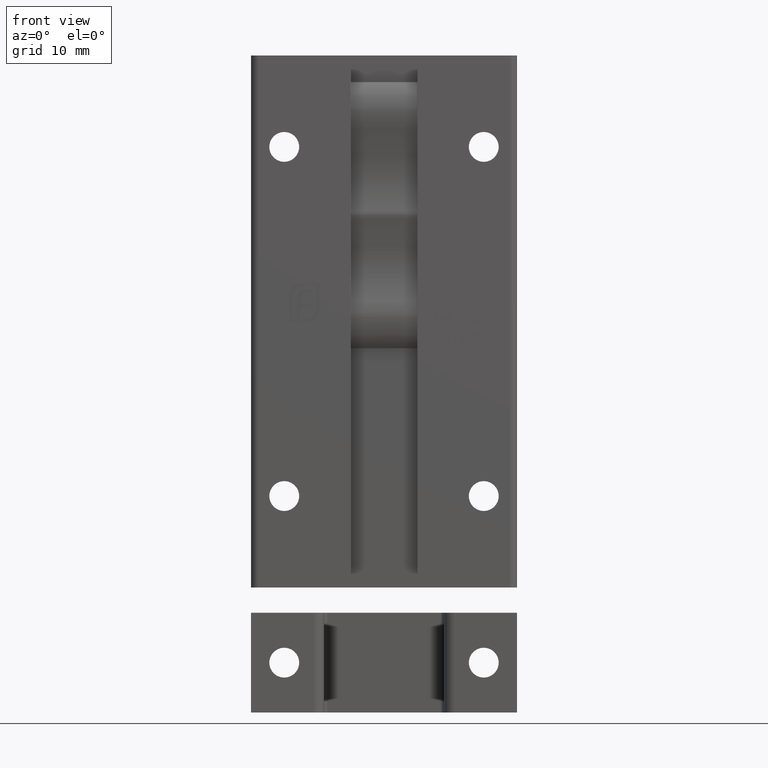
[diagram: clean part render]
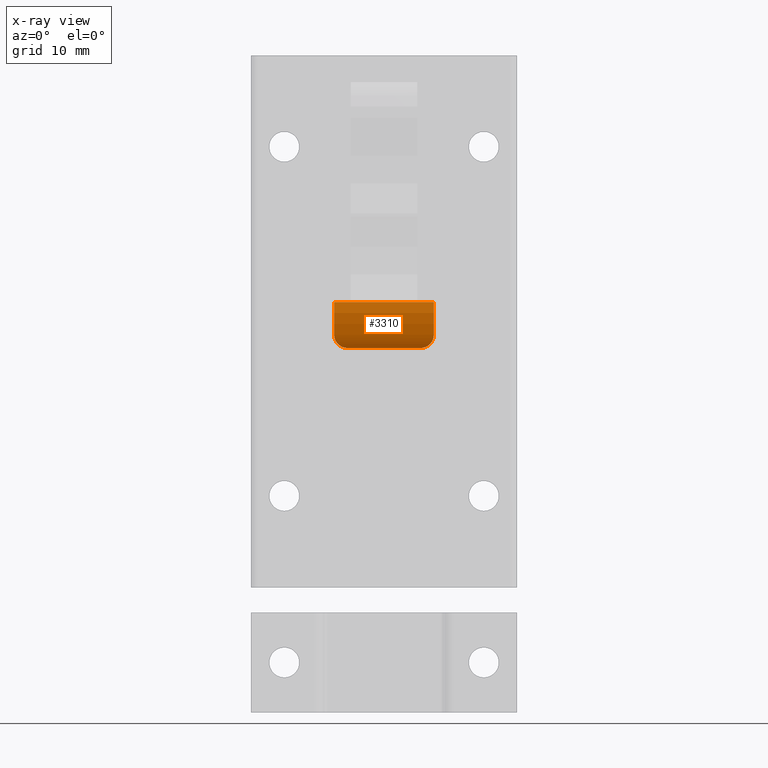
[diagram: x-ray — body ghosted, one internal face saturated and labeled with its STEP entity id]
A machine part, front view, then the same camera in x-ray: the body is ghosted and one INTERNAL B-rep face — a face not visible from any outside direction — is saturated and labeled: STEP entity #3310.
In plain terms, the highlighted cylindrical surface (partial cylindrical patch) has radius 7.5 mm, axis along (-1, -0, -0).
Its self-contained STEP definition (entity closure, byte-faithful):
#83 = CARTESIAN_POINT ( 'NONE',  ( -7.500000000000000000, -1.071067811865478614, -1.999999999999984457 ) ) ;
#136 = CARTESIAN_POINT ( 'NONE',  ( 6.426107730063187695, -0.1607990283439771351, -3.777722054100910665 ) ) ;
#240 = CARTESIAN_POINT ( 'NONE',  ( 7.500000000000000888, -0.9774048739793861351, -2.264918794100429622 ) ) ;
#306 = CARTESIAN_POINT ( 'NONE',  ( 7.448666882750665685, -0.8711651577369010635, -2.517618791392199906 ) ) ;
#412 = CARTESIAN_POINT ( 'NONE',  ( -7.500000000000000000, -1.104082574612440304, 2.904581205342815498 ) ) ;
#564 = CARTESIAN_POINT ( 'NONE',  ( 7.500000000000000000, 6.000000000000000000, 0.5000000000000004441 ) ) ;
#672 = VERTEX_POINT ( 'NONE', #11357 ) ;
#721 = VERTEX_POINT ( 'NONE', #15248 ) ;
#755 = CYLINDRICAL_SURFACE ( 'NONE', #2269, 7.500000000000000000 ) ;
#986 = AXIS2_PLACEMENT_3D ( 'NONE', #13583, #12314, #7338 ) ;
#1317 = CARTESIAN_POINT ( 'NONE',  ( -5.778194594536025797, -0.01109297872611070788, -3.985309432221248560 ) ) ;
#1508 = CARTESIAN_POINT ( 'NONE',  ( 7.304202719863843285, -0.7002871056056154675, -2.872445129460279301 ) ) ;
#1556 = EDGE_CURVE ( 'NONE', #672, #4350, #15251, .T. ) ;
#2269 = AXIS2_PLACEMENT_3D ( 'NONE', #8420, #13788, #16277 ) ;
#2427 = CIRCLE ( 'NONE', #986, 7.500000000000000000 ) ;
#2446 = CARTESIAN_POINT ( 'NONE',  ( -6.423564882269716669, -0.1598968726450239464, -3.779015409477382903 ) ) ;
#2551 = CARTESIAN_POINT ( 'NONE',  ( -5.500000000000000000, 1.734723475976807094E-15, -4.000000000000000000 ) ) ;
#2637 = CARTESIAN_POINT ( 'NONE',  ( 6.057806334950957883, -0.04651599445729846100, -3.939261975589382292 ) ) ;
#2668 = CARTESIAN_POINT ( 'NONE',  ( -6.753627463762629901, -0.3042463854588044470, -3.563809739915361874 ) ) ;
#2730 = CARTESIAN_POINT ( 'NONE',  ( 7.500000000000000000, 1.734723475976807094E-15, -4.000000000000000000 ) ) ;
#2910 = DIRECTION ( 'NONE',  ( 0.000000000000000000, 0.000000000000000000, 1.000000000000000000 ) ) ;
#3310 = ADVANCED_FACE ( 'NONE', ( #9175 ), #755, .F. ) ;
#3734 = VERTEX_POINT ( 'NONE', #6047 ) ;
#3864 = CARTESIAN_POINT ( 'NONE',  ( -6.046850544074846567, -0.05293708814186200151, -3.928678370423839716 ) ) ;
#3884 = CARTESIAN_POINT ( 'NONE',  ( 7.500000000000000000, -1.071067811865479502, -1.999999999999984457 ) ) ;
#4343 = VECTOR ( 'NONE', #9410, 1000.000000000000000 ) ;
#4350 = VERTEX_POINT ( 'NONE', #83 ) ;
#4893 = VECTOR ( 'NONE', #15253, 1000.000000000000000 ) ;
#5142 = CARTESIAN_POINT ( 'NONE',  ( -7.499999999999998224, -0.9774302356420213611, -2.264847060485901231 ) ) ;
#5202 = CARTESIAN_POINT ( 'NONE',  ( -7.304187924975747315, -0.7002786282098323323, -2.872456656298129740 ) ) ;
#5324 = CARTESIAN_POINT ( 'NONE',  ( 6.542630746361173699, -0.2064623538155781479, -3.711621255671609276 ) ) ;
#5384 = CARTESIAN_POINT ( 'NONE',  ( 5.500000000000000000, 1.734723475976807094E-15, -4.000000000000000000 ) ) ;
#6047 = CARTESIAN_POINT ( 'NONE',  ( 5.500000000000000000, 1.734723475976807094E-15, -4.000000000000000000 ) ) ;
#6208 = ORIENTED_EDGE ( 'NONE', *, *, #1556, .T. ) ;
#6271 = CIRCLE ( 'NONE', #11905, 7.500000000000000000 ) ;
#6329 = CARTESIAN_POINT ( 'NONE',  ( -7.028320208474333697, -0.4690961432626273853, -3.296360821492545945 ) ) ;
#6364 = VERTEX_POINT ( 'NONE', #7960 ) ;
#6435 = CARTESIAN_POINT ( 'NONE',  ( -5.640785391767453305, 1.732464721450793786E-15, -3.999999999999997335 ) ) ;
#6465 = CARTESIAN_POINT ( 'NONE',  ( 6.754389272294284652, -0.3047023203616918696, -3.563084690500655682 ) ) ;
#6642 = DIRECTION ( 'NONE',  ( -1.000000000000000000, -0.000000000000000000, 0.000000000000000000 ) ) ;
#7167 = EDGE_LOOP ( 'NONE', ( #15219, #6208, #13630, #15400, #7585, #12683 ) ) ;
#7338 = DIRECTION ( 'NONE',  ( 0.000000000000000000, 0.000000000000000000, 1.000000000000000000 ) ) ;
#7476 = B_SPLINE_CURVE_WITH_KNOTS ( 'NONE', 3,
 ( #3884, #240, #306, #1508, #10175, #9007, #12875, #11447, #6465, #5324, #136, #2637, #11503, #5384 ),
 .UNSPECIFIED., .F., .F.,
 ( 4, 2, 2, 2, 2, 2, 4 ),
 ( 0.000000000000000000, 0.0008302729661100419645, 0.001245409449165063272, 0.001660545932220084580, 0.002075682415275106104, 0.002490818898330126978, 0.003321091864440170027 ),
 .UNSPECIFIED. ) ;
#7585 = ORIENTED_EDGE ( 'NONE', *, *, #11429, .F. ) ;
#7655 = CARTESIAN_POINT ( 'NONE',  ( -6.539443180235142705, -0.2050879853966989519, -3.713662917734033897 ) ) ;
#7960 = CARTESIAN_POINT ( 'NONE',  ( 7.500000000000000000, -1.104082574612440304, 2.904581205342815498 ) ) ;
#8199 = CARTESIAN_POINT ( 'NONE',  ( 7.500000000000000000, -1.104082574612440304, 2.904581205342815498 ) ) ;
#8420 = CARTESIAN_POINT ( 'NONE',  ( 7.500000000000000000, 6.000000000000000000, 0.5000000000000004441 ) ) ;
#8927 = CARTESIAN_POINT ( 'NONE',  ( -7.245649121895437084, -0.6426612754682365924, -2.984188051810463982 ) ) ;
#9007 = CARTESIAN_POINT ( 'NONE',  ( 7.108200398416099297, -0.5273754340415911512, -3.195655692416754956 ) ) ;
#9175 = FACE_OUTER_BOUND ( 'NONE', #7167, .T. ) ;
#9410 = DIRECTION ( 'NONE',  ( -1.000000000000000000, -0.000000000000000000, -0.000000000000000000 ) ) ;
#10032 = CARTESIAN_POINT ( 'NONE',  ( -7.448530621106668193, -0.8709859523065786036, -2.518003051725684394 ) ) ;
#10175 = CARTESIAN_POINT ( 'NONE',  ( 7.245639453374921324, -0.6426554584118436830, -2.984197111911629730 ) ) ;
#10523 = EDGE_CURVE ( 'NONE', #6364, #12482, #15401, .T. ) ;
#11357 = CARTESIAN_POINT ( 'NONE',  ( -5.500000000000000000, 1.734723475976807094E-15, -4.000000000000000000 ) ) ;
#11429 = EDGE_CURVE ( 'NONE', #721, #6364, #6271, .T. ) ;
#11447 = CARTESIAN_POINT ( 'NONE',  ( 6.851260246772505447, -0.3577665989996972606, -3.479993121258141198 ) ) ;
#11503 = CARTESIAN_POINT ( 'NONE',  ( 5.781815630160955344, -8.385626177817574343E-16, -3.999999999999998224 ) ) ;
#11592 = LINE ( 'NONE', #2730, #4893 ) ;
#11905 = AXIS2_PLACEMENT_3D ( 'NONE', #564, #6642, #2910 ) ;
#12314 = DIRECTION ( 'NONE',  ( -1.000000000000000000, -0.000000000000000000, 0.000000000000000000 ) ) ;
#12482 = VERTEX_POINT ( 'NONE', #412 ) ;
#12518 = CARTESIAN_POINT ( 'NONE',  ( -6.178605366706052315, -0.08411486123638535484, -3.886097207250359009 ) ) ;
#12683 = ORIENTED_EDGE ( 'NONE', *, *, #14725, .T. ) ;
#12875 = CARTESIAN_POINT ( 'NONE',  ( 7.028396734538585378, -0.4691544432866641690, -3.296258969238362813 ) ) ;
#12890 = EDGE_CURVE ( 'NONE', #3734, #672, #11592, .T. ) ;
#13583 = CARTESIAN_POINT ( 'NONE',  ( -7.500000000000000000, 6.000000000000000000, 0.5000000000000004441 ) ) ;
#13630 = ORIENTED_EDGE ( 'NONE', *, *, #15863, .T. ) ;
#13788 = DIRECTION ( 'NONE',  ( -1.000000000000000000, -0.000000000000000000, -0.000000000000000000 ) ) ;
#13796 = CARTESIAN_POINT ( 'NONE',  ( -6.850997352987580946, -0.3576114828543375812, -3.480243287893042936 ) ) ;
#14725 = EDGE_CURVE ( 'NONE', #721, #3734, #7476, .T. ) ;
#15071 = CARTESIAN_POINT ( 'NONE',  ( -7.500000000000000000, -1.071067811865478614, -1.999999999999984457 ) ) ;
#15219 = ORIENTED_EDGE ( 'NONE', *, *, #12890, .T. ) ;
#15248 = CARTESIAN_POINT ( 'NONE',  ( 7.500000000000000000, -1.071067811865479502, -1.999999999999984457 ) ) ;
#15251 = B_SPLINE_CURVE_WITH_KNOTS ( 'NONE', 3,
 ( #2551, #6435, #1317, #3864, #12518, #2446, #7655, #2668, #13796, #6329, #16343, #8927, #5202, #10032, #5142, #15071 ),
 .UNSPECIFIED., .F., .F.,
 ( 4, 2, 2, 2, 2, 2, 2, 4 ),
 ( 8.690393154429154489E-19, 0.0004154262713848123987, 0.0008308525427696239300, 0.001246278814154435678, 0.001661705085539247643, 0.002077131356924059175, 0.002492557628308871356, 0.003323410171078494419 ),
 .UNSPECIFIED. ) ;
#15253 = DIRECTION ( 'NONE',  ( -1.000000000000000000, -0.000000000000000000, -0.000000000000000000 ) ) ;
#15400 = ORIENTED_EDGE ( 'NONE', *, *, #10523, .F. ) ;
#15401 = LINE ( 'NONE', #8199, #4343 ) ;
#15863 = EDGE_CURVE ( 'NONE', #4350, #12482, #2427, .T. ) ;
#16277 = DIRECTION ( 'NONE',  ( 0.000000000000000000, 0.000000000000000000, 1.000000000000000000 ) ) ;
#16343 = CARTESIAN_POINT ( 'NONE',  ( -7.108135959276356886, -0.5273236778393460833, -3.195749018223766669 ) ) ;